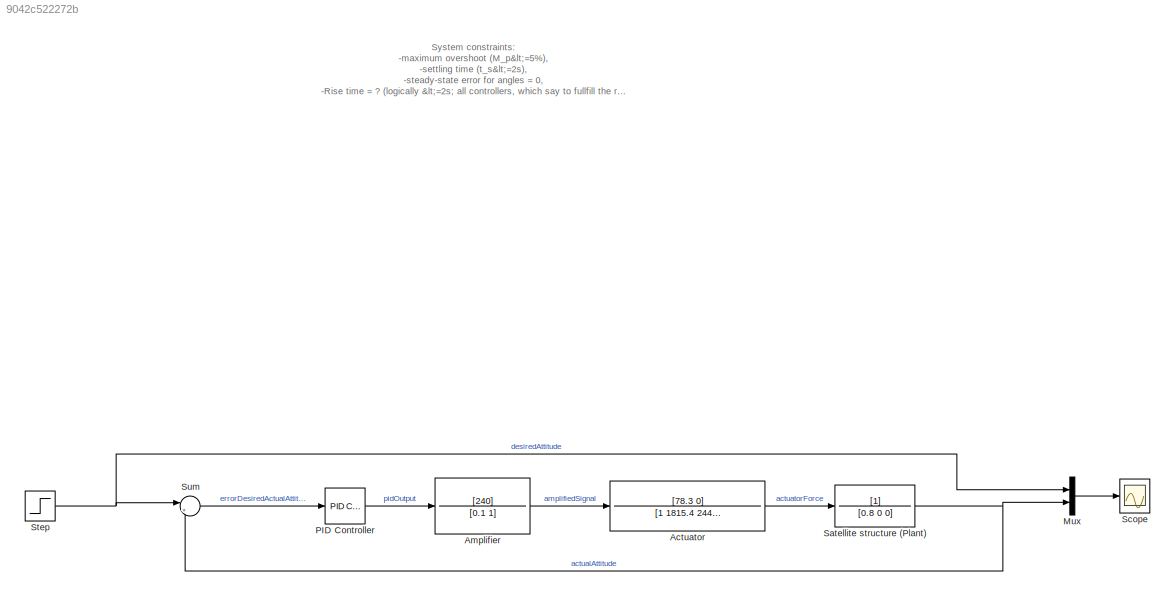
MODEL slx_9042c522272b
KIND model
CONFIG AbsTol = auto
CONFIG EnableMultiTasking = off
CONFIG FixedStep = 0.001
CONFIG MaxStep = auto
CONFIG MinStep = auto
CONFIG RelTol = 1e-3
CONFIG SampleTimeConstraint = Unconstrained
CONFIG SolverName = FixedStepAuto
CONFIG StartTime = 0.0
CONFIG StopTime = 15
BLOCK [TransferFcn] Actuator
  ContinuousStateAttributes = 'Actuator'
  Denominator = [1 1815.4 24466]
  Numerator = [78.3 0]
BLOCK [TransferFcn] Amplifier
  ContinuousStateAttributes = 'Amplifier'
  Denominator = [0.1 1]
  Numerator = [240]
BLOCK [Mux] Mux
  DisplayOption = bar
  Inputs = 2
BLOCK [Reference] PID Controller  REF=slpidlib/PID Controller
  LibrarySourceBlock = simulink/Continuous/PID Controller
  SourceBlock = slpidlib/PID Controller
  SourceType = PID 1dof
BLOCK [TransferFcn] Satellite structure (Plant)
  ContinuousStateAttributes = 'Satellite_structure'
  Denominator = [0.8 0 0]
BLOCK [Scope] Scope
  Floating = off
  NumInputPorts = 1
  ScopeSpecificationString = Simulink.scopes.TimeScopeBlockCfg('CurrentConfiguration', extmgr.ConfigurationSet(extmgr.Configuration('Core','General UI',true),extmgr.Configuration('Core','Source UI',true),extmgr.Configuration('Sources','WiredSimulink',true),extmgr.Configuration('Visuals','Time Domain',true,'SerializedDisplays',{struct('MinYLimReal','-0.16565','MaxYLimReal','1.49085','YLabelReal','','MinYLimMag','0.00000','MaxY...<+1494ch>
BLOCK [Step] Step
  SampleTime = 0
BLOCK [Sum] Sum
  Inputs = |+-
ANNOTATION (root): System constraints: -maximum overshoot (M_p<=5%), -settling time (t_s<=2s), -steady-state error for angles = 0, -Rise time = ? (logically <=2s; all controllers, which say to fullfill the requirements have <=1,5s)
LINE Actuator:1 -> Satellite structure (Plant):1
LINE Amplifier:1 -> Actuator:1
LINE Mux:1 -> Scope:1
LINE PID Controller:1 -> Amplifier:1
NET Satellite structure (Plant):1 -> Mux:2, Sum:2
NET Step:1 -> Mux:1, Sum:1
LINE Sum:1 -> PID Controller:1
note: NET lines group one-source signal fan-out (src -> all destinations, sorted); 1:1 wires keep LINE
